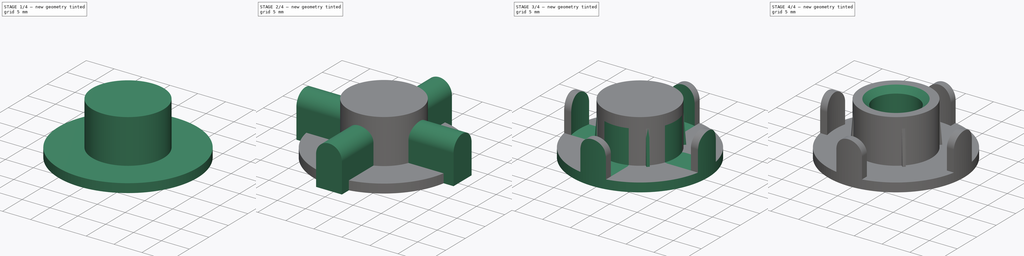
[diagram: build sequence overview — one tinted view per stage of 4, left to right]
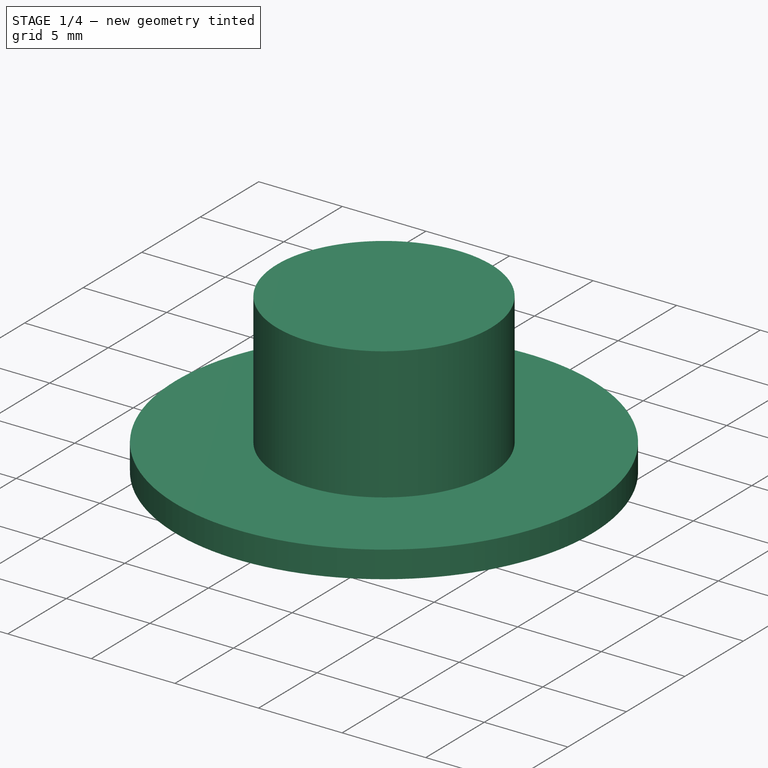
[diagram: stage 1 of 4 — iso view after this stage's code; geometry added in this stage tinted green]
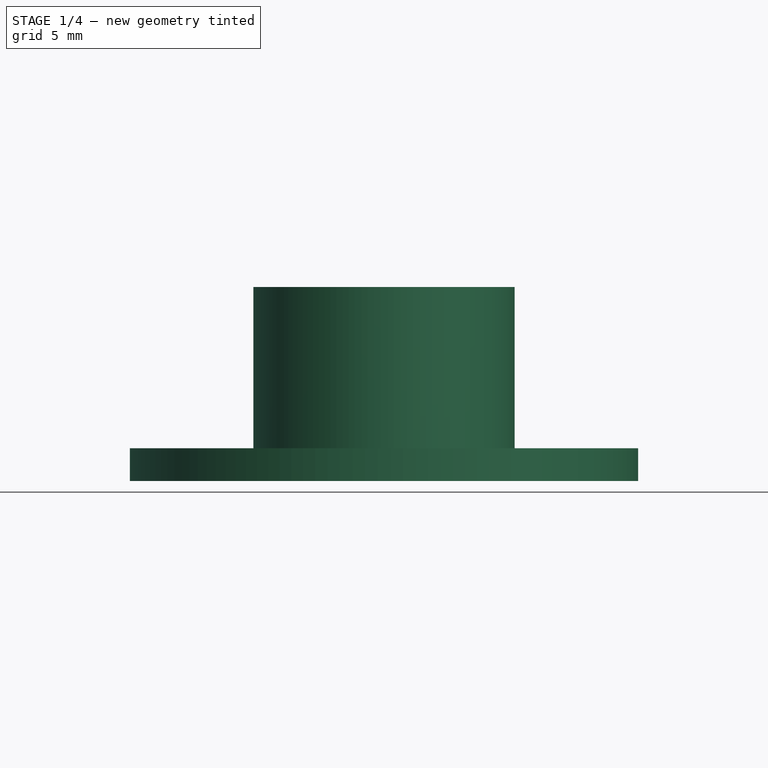
[diagram: stage 1 of 4 — front view after this stage's code; geometry added in this stage tinted green]
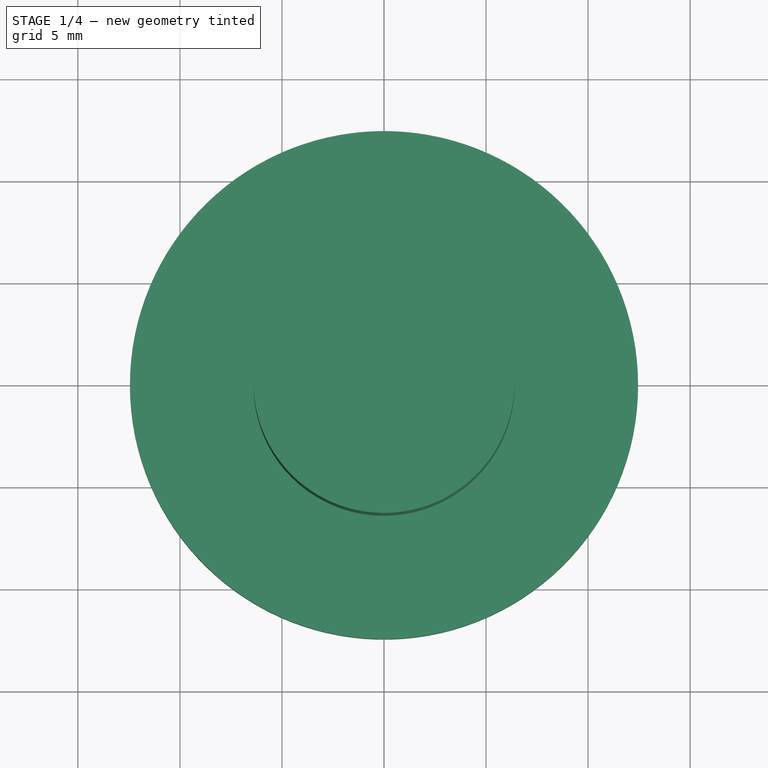
[diagram: stage 1 of 4 — top view after this stage's code; geometry added in this stage tinted green]
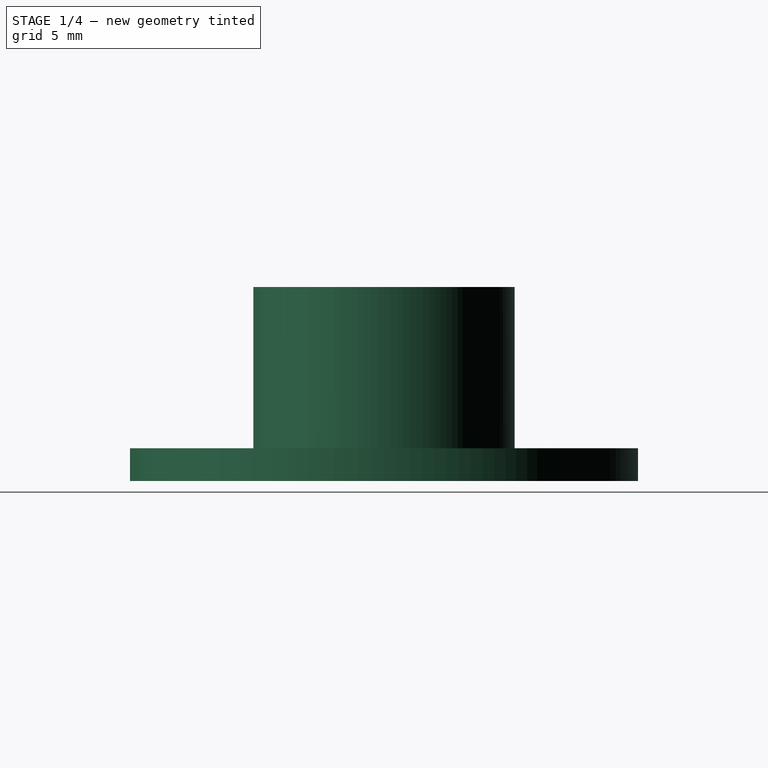
[diagram: stage 1 of 4 — right view after this stage's code; geometry added in this stage tinted green]
FCSTD DOCUMENT  (FreeCAD 0.19R24291 (Git))
Label: Wheel Mount
License: All rights reserved
LicenseURL: http://en.wikipedia.org/wiki/All_rights_reserved
objects: Sketcher::SketchObject×7, PartDesign::Pad×3, PartDesign::Pocket×2, PartDesign::PolarPattern×1, PartDesign::Revolution×1, PartDesign::Groove×1, PartDesign::Chamfer×1, PartDesign::Body×1
note: 25 computed .brp shape members not serialized (recipe doc carries the construction recipe); baked Part::Feature solids carry a one-line shape summary decoded from their .brp

FEATURE [Sketcher::SketchObject] Sketch
  FullyConstrained = true
  MapMode = 5
  Support = -> [XY_Plane]
  sketch-geometry (1):
    g0: Circle CenterX=0 CenterY=0 CenterZ=0 NormalX=0 NormalY=0 NormalZ=1 AngleXU=0 Radius=12.45
  constraints (2):
    c: Coincident(g0,g-1)
    c: Radius(g0) = 12.45  'BaseRadius'
FEATURE [PartDesign::Pad] Pad
  Direction = (1,1,1)
  Length = 1.6
  Length2 = 100
  Profile = -> Sketch
  Type = 0
FEATURE [Sketcher::SketchObject] Sketch001
  FullyConstrained = true
  MapMode = 5
  Placement = pos=(0,0,1.6) rot=(0,0,1;0rad)
  Support = -> [Pad]
  sketch-geometry (1):
    g0: Circle CenterX=0 CenterY=0 CenterZ=0 NormalX=0 NormalY=0 NormalZ=1 AngleXU=0 Radius=6.4
  constraints (2):
    c: Coincident(g0,g-1)
    c: Radius(g0) = 6.4
FEATURE [PartDesign::Pad] Pad001
  BaseFeature = -> Pad
  Direction = (1,1,1)
  Length = 7.9
  Length2 = 100
  Profile = -> Sketch001
  Type = 0
  expr: Length = 9.5mm - Pad.Length
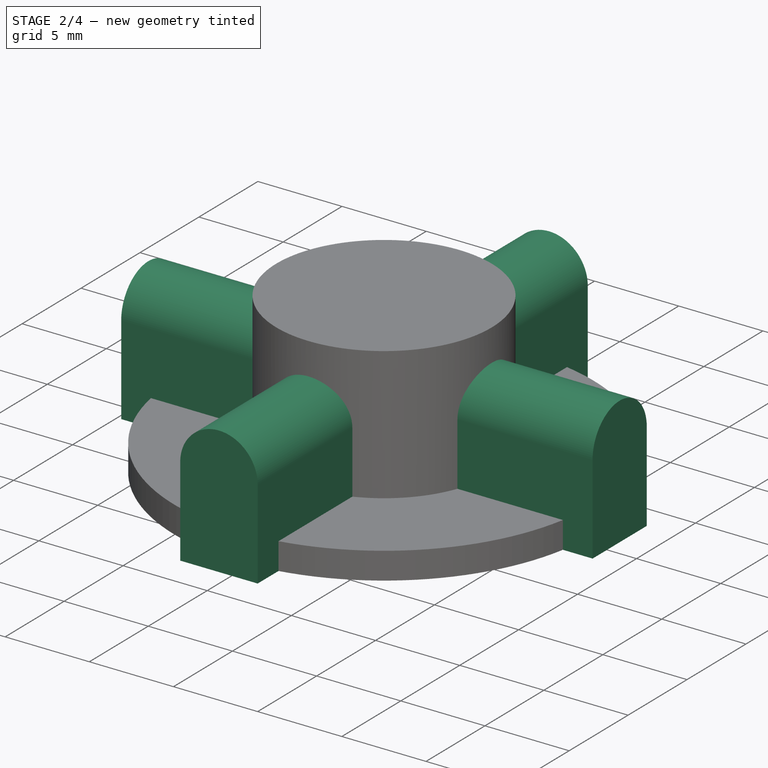
[diagram: stage 2 of 4 — iso view after this stage's code; geometry added in this stage tinted green]
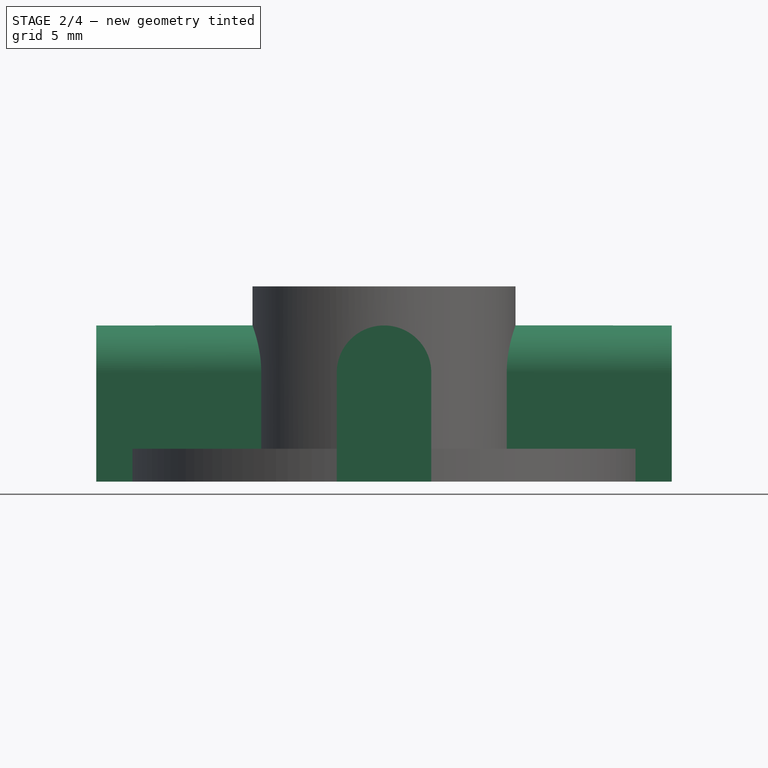
[diagram: stage 2 of 4 — front view after this stage's code; geometry added in this stage tinted green]
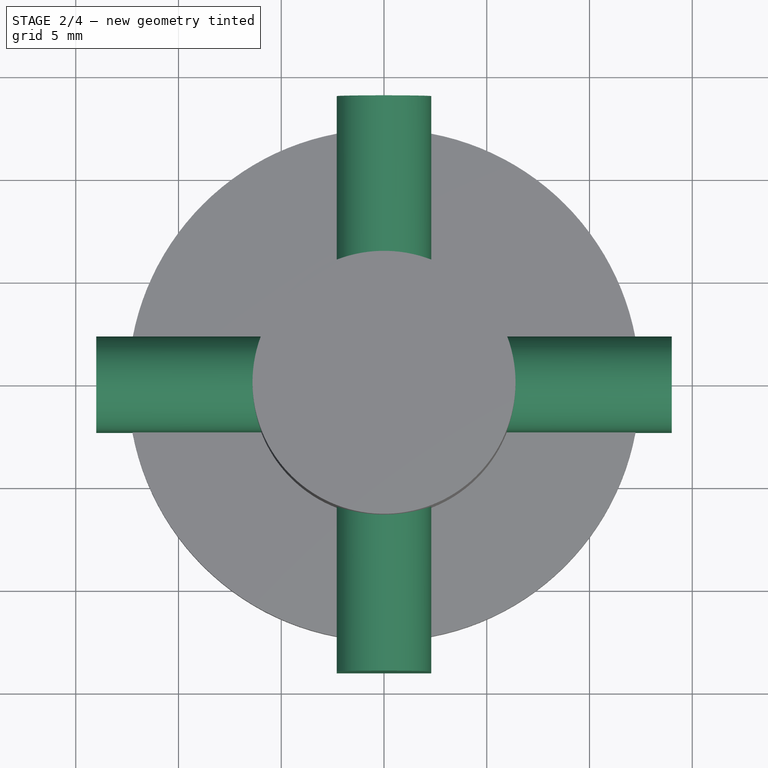
[diagram: stage 2 of 4 — top view after this stage's code; geometry added in this stage tinted green]
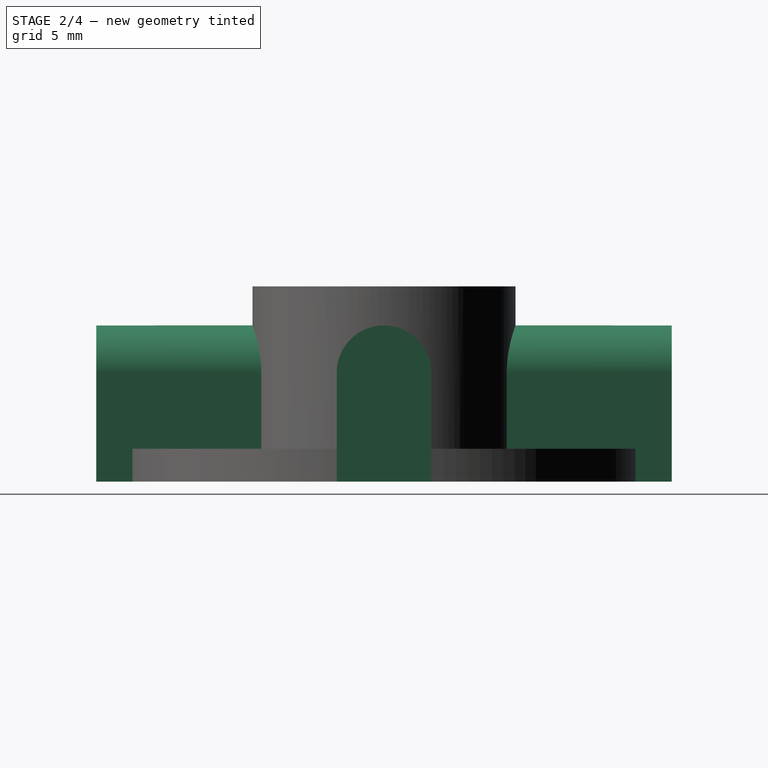
[diagram: stage 2 of 4 — right view after this stage's code; geometry added in this stage tinted green]
FEATURE [Sketcher::SketchObject] Sketch002
  FullyConstrained = true
  MapMode = 5
  Placement = pos=(0,0,0) rot=(1,0,0;1.5708rad)
  Support = -> [XZ_Plane]
  sketch-geometry (5):
    g0: LineSegment StartX=-2.3 StartY=0 StartZ=0 EndX=-2.3 EndY=5.3 EndZ=0
    g1: LineSegment StartX=2.3 StartY=0 StartZ=0 EndX=2.3 EndY=5.3 EndZ=0
    g2: ArcOfCircle CenterX=-2e-16 CenterY=5.3 CenterZ=0 NormalX=0 NormalY=0 NormalZ=1 AngleXU=0 Radius=2.3 StartAngle=-6.137e-13 EndAngle=3.14159
    g3: LineSegment StartX=-2.3 StartY=0 StartZ=0 EndX=2.3 EndY=0 EndZ=0
    g4: GeomPoint X=0 Y=7.6 Z=0
  constraints (12):
    c: PointOnObject(g1,g-1)
    c: Vertical(g0)
    c: Vertical(g1)
    c: Symmetric(g0,g1,g-2)
    c: Coincident(g3,g0)
    c: Coincident(g3,g1)
    c: DistanceX(g3,g3) = 4.6
    c: Tangent(g2,g0) = 1.5708
    c: Tangent(g2,g1) = -1.5708
    c: PointOnObject(g4,g2)
    c: PointOnObject(g4,g-2)
    c: DistanceY(g-1,g4) = 7.6
FEATURE [PartDesign::Pad] Pad002
  BaseFeature = -> Pad001
  Direction = (1,1,1)
  Length = 14
  Length2 = 100
  Profile = -> Sketch002
  Type = 0
FEATURE [PartDesign::PolarPattern] PolarPattern
  Angle = 360
  Axis = -> Sketch002 [V_Axis]
  BaseFeature = -> Pad002
  Occurrences = 4
  Originals = -> [Pad002]
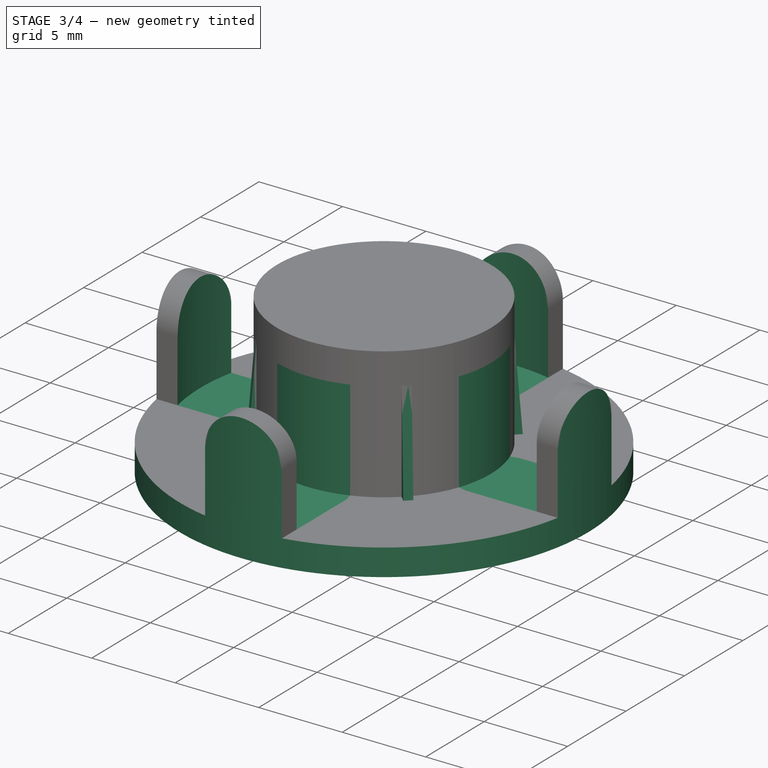
[diagram: stage 3 of 4 — iso view after this stage's code; geometry added in this stage tinted green]
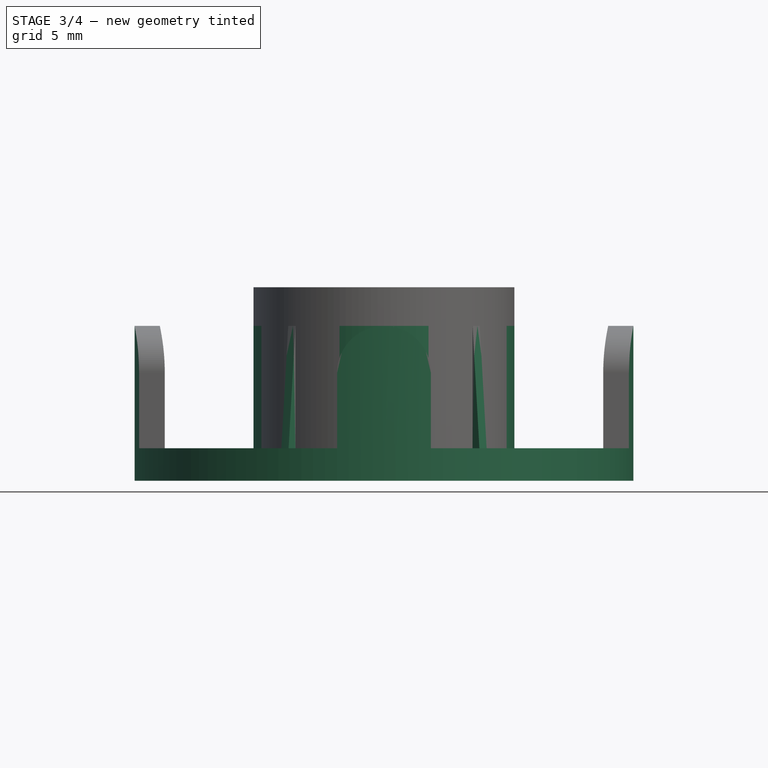
[diagram: stage 3 of 4 — front view after this stage's code; geometry added in this stage tinted green]
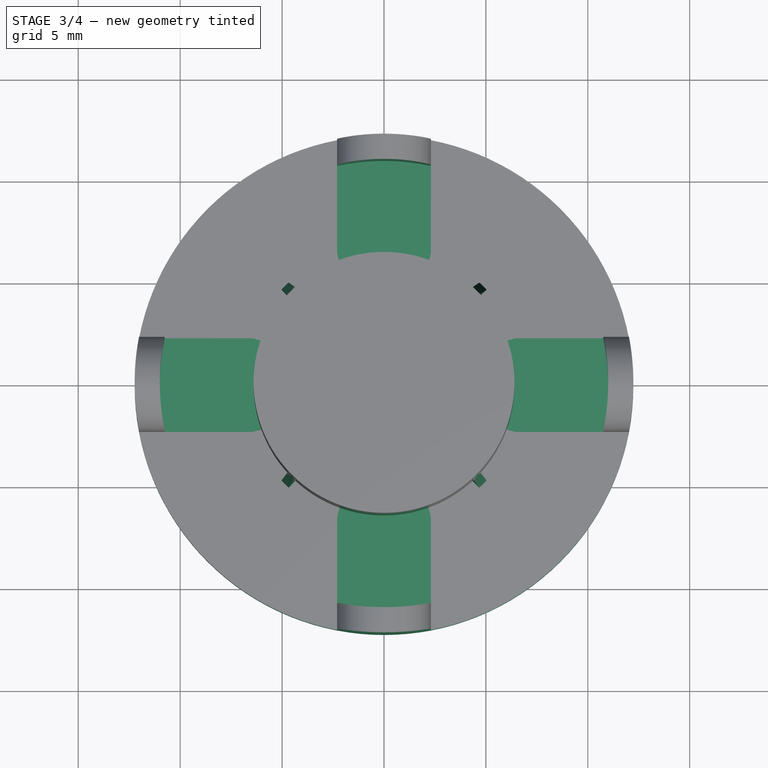
[diagram: stage 3 of 4 — top view after this stage's code; geometry added in this stage tinted green]
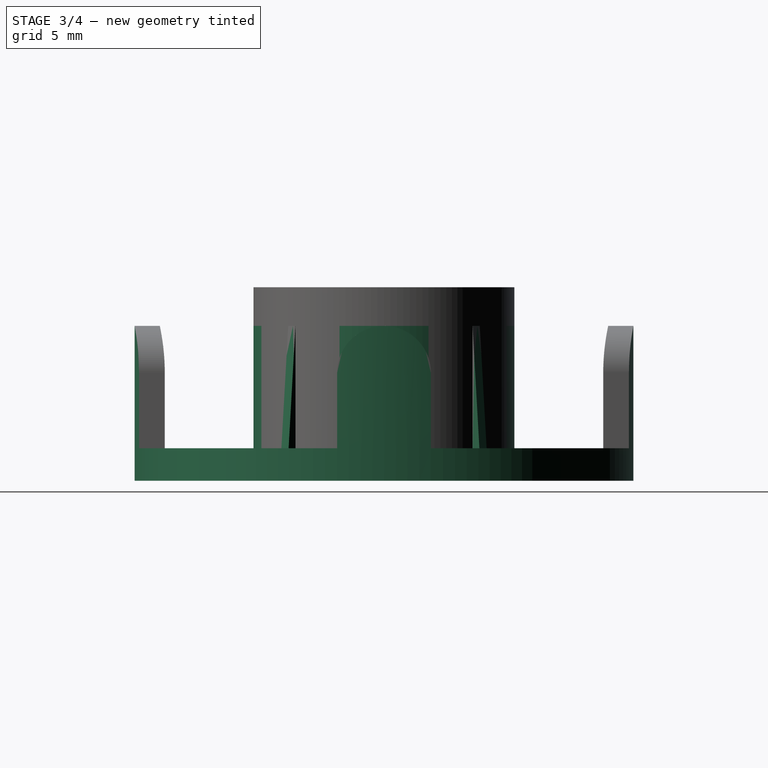
[diagram: stage 3 of 4 — right view after this stage's code; geometry added in this stage tinted green]
FEATURE [Sketcher::SketchObject] Sketch004
  FullyConstrained = false
  MapMode = 5
  Placement = pos=(0,0,0) rot=(1,0,0;1.5708rad)
  Support = -> [XZ_Plane]
  sketch-geometry (4):
    g0: LineSegment StartX=-12.2357 StartY=0 StartZ=0 EndX=-16.2357 EndY=0 EndZ=0
    g1: LineSegment StartX=-16.2357 StartY=0 StartZ=0 EndX=-16.2357 EndY=10 EndZ=0
    g2: LineSegment StartX=-16.2357 StartY=10 StartZ=0 EndX=-12.2357 EndY=10 EndZ=0
    g3: LineSegment StartX=-12.2357 StartY=10 StartZ=0 EndX=-12.2357 EndY=0 EndZ=0
  constraints (10):
    c: Coincident(g0,g1)
    c: Coincident(g1,g2)
    c: Coincident(g2,g3)
    c: Coincident(g3,g0)
    c: Horizontal(g0)
    c: Horizontal(g2)
    c: Vertical(g1)
    c: Vertical(g3)
    c: DistanceY(g1,g1) = 10
    c: DistanceX(g0,g0) = 4
FEATURE [Sketcher::SketchObject] Sketch006
  ExternalGeometry = -> [PolarPattern]
  FullyConstrained = true
  MapMode = 5
  Placement = pos=(0,0,0) rot=(1,0,0;1.5708rad)
  Support = -> [XZ_Plane]
  sketch-geometry (4):
    g0: LineSegment StartX=0 StartY=0 StartZ=0 EndX=0 EndY=7.6 EndZ=0
    g1: LineSegment StartX=0 StartY=7.6 StartZ=0 EndX=6.4 EndY=7.6 EndZ=0
    g2: LineSegment StartX=6.4 StartY=7.6 StartZ=0 EndX=7 EndY=0 EndZ=0
    g3: LineSegment StartX=7 StartY=0 StartZ=0 EndX=0 EndY=0 EndZ=0
  constraints (10):
    c: Coincident(g-1,g0)
    c: PointOnObject(g0,g-2)
    c: Coincident(g0,g1)
    c: Horizontal(g1)
    c: Coincident(g1,g2)
    c: PointOnObject(g2,g-1)
    c: Coincident(g2,g3)
    c: Coincident(g3,g0)
    c: DistanceX(g3,g3) = 7
    c: Coincident(g1,g-3)
FEATURE [PartDesign::Revolution] Revolution
  Angle = 360
  Axis = (0,-2e-16,1)
  Base = (0,0,0)
  BaseFeature = -> PolarPattern
  Profile = -> Sketch006
  ReferenceAxis = -> Sketch006 [V_Axis]
  Reversed = true
FEATURE [Sketcher::SketchObject] Sketch007
  ExternalGeometry = -> [Revolution]
  FullyConstrained = true
  MapMode = 5
  Placement = pos=(0,0,1.6) rot=(0,0,1;0rad)
  Support = -> [Revolution]
  sketch-geometry (25):
    g0: Circle CenterX=0 CenterY=0 CenterZ=0 NormalX=0 NormalY=0 NormalZ=1 AngleXU=0 Radius=11
    g1: ArcOfCircle CenterX=1.4e-15 CenterY=0 CenterZ=0 NormalX=0 NormalY=0 NormalZ=1 AngleXU=0 Radius=11 StartAngle=2.37892 EndAngle=3.90426
    g2: ArcOfCircle CenterX=1.4e-15 CenterY=0 CenterZ=0 NormalX=0 NormalY=0 NormalZ=1 AngleXU=0 Radius=11 StartAngle=3.94972 EndAngle=5.47506
    g3: ArcOfCircle CenterX=1.4e-15 CenterY=0 CenterZ=0 NormalX=0 NormalY=0 NormalZ=1 AngleXU=0 Radius=11 StartAngle=5.52052 EndAngle=7.04585
    g4: ArcOfCircle CenterX=1.4e-15 CenterY=0 CenterZ=0 NormalX=0 NormalY=0 NormalZ=1 AngleXU=0 Radius=11 StartAngle=0.808127 EndAngle=2.33347
    g5: LineSegment StartX=-7.59939 StartY=7.95294 StartZ=0 EndX=-4.34525 EndY=4.69881 EndZ=0
    g6: LineSegment StartX=7.59939 StartY=7.95294 StartZ=0 EndX=4.34525 EndY=4.69881 EndZ=0
    g7: ArcOfCircle CenterX=1.4e-15 CenterY=0 CenterZ=0 NormalX=0 NormalY=0 NormalZ=1 AngleXU=0 Radius=6.4 StartAngle=0.824471 EndAngle=2.31712
    g8: LineSegment StartX=-7.95294 StartY=7.59939 StartZ=0 EndX=-4.69881 EndY=4.34525 EndZ=0
    g9: LineSegment StartX=7.95294 StartY=-7.59939 StartZ=0 EndX=4.69881 EndY=-4.34525 EndZ=0
    g10: LineSegment StartX=7.59939 StartY=-7.95294 StartZ=0 EndX=4.34525 EndY=-4.69881 EndZ=0
    g11: LineSegment StartX=-7.59939 StartY=-7.95294 StartZ=0 EndX=-4.34525 EndY=-4.69881 EndZ=0
    g12: LineSegment StartX=-7.95294 StartY=-7.59939 StartZ=0 EndX=-4.69881 EndY=-4.34525 EndZ=0
    g13: ArcOfCircle CenterX=1.4e-15 CenterY=0 CenterZ=0 NormalX=0 NormalY=0 NormalZ=1 AngleXU=0 Radius=6.4 StartAngle=5.53686 EndAngle=7.02951
    g14: ArcOfCircle CenterX=1.4e-15 CenterY=0 CenterZ=0 NormalX=0 NormalY=0 NormalZ=1 AngleXU=0 Radius=6.4 StartAngle=3.96606 EndAngle=5.45871
    g15: ArcOfCircle CenterX=1.4e-15 CenterY=0 CenterZ=0 NormalX=0 NormalY=0 NormalZ=1 AngleXU=0 Radius=6.4 StartAngle=2.39527 EndAngle=3.88792
    g16: LineSegment StartX=7.95294 StartY=7.59939 StartZ=0 EndX=4.69881 EndY=4.34525 EndZ=0
    g17: LineSegment StartX=1.4e-15 StartY=0 StartZ=0 EndX=-8.80348 EndY=-8.80348 EndZ=0
    g18: LineSegment StartX=-7.95294 StartY=-7.59939 StartZ=0 EndX=-7.59939 EndY=-7.95294 EndZ=0
    g19: LineSegment StartX=1.4e-15 StartY=0 StartZ=0 EndX=8.80348 EndY=-8.80348 EndZ=0
    g20: LineSegment StartX=7.95294 StartY=-7.59939 StartZ=0 EndX=7.59939 EndY=-7.95294 EndZ=0
    g21: LineSegment StartX=1.4e-15 StartY=0 StartZ=0 EndX=8.80348 EndY=8.80348 EndZ=0
    g22: LineSegment StartX=7.59939 StartY=7.95294 StartZ=0 EndX=7.95294 EndY=7.59939 EndZ=0
    g23: LineSegment StartX=-7.59939 StartY=7.95294 StartZ=0 EndX=-7.95294 EndY=7.59939 EndZ=0
    g24: LineSegment StartX=1.4e-15 StartY=0 StartZ=0 EndX=-8.80348 EndY=8.80348 EndZ=0
  constraints (69):
    c: Coincident(g0,g-1)
    c: Radius(g-6) = 12.45
    c: Radius(g0) = 11
    c: PointOnObject(g1,g0)
    c: Coincident(g2,g1)
    c: PointOnObject(g2,g0)
    c: Coincident(g3,g1)
    c: Coincident(g4,g1)
    c: PointOnObject(g4,g0)
    c: Coincident(g5,g4)
    c: PointOnObject(g5,g-7)
    c: Coincident(g6,g4)
    c: Coincident(g7,g1)
    c: Coincident(g7,g5)
    c: Coincident(g7,g6)
    c: Coincident(g8,g1)
    c: PointOnObject(g8,g-7)
    c: Coincident(g9,g3)
    c: PointOnObject(g9,g-7)
    c: Coincident(g10,g2)
    c: PointOnObject(g10,g-7)
    c: Coincident(g11,g2)
    c: Coincident(g12,g1)
    c: Coincident(g13,g1)
    c: Coincident(g13,g9)
    c: Coincident(g14,g1)
    c: Coincident(g14,g10)
    c: Coincident(g14,g11)
    c: Coincident(g15,g1)
    c: Coincident(g15,g8)
    c: Coincident(g15,g12)
    c: Coincident(g16,g3)
    c: Coincident(g16,g13)
    c: Coincident(g17,g1)
    c: PointOnObject(g17,g-4)
    c: Parallel(g12,g17)
    c: Parallel(g17,g11)
    c: Coincident(g18,g1)
    c: Coincident(g18,g2)
    c: Symmetric(g2,g1,g17)
    c: Distance(g18) = 0.5
    c: Coincident(g19,g1)
    c: PointOnObject(g19,g-5)
    c: Parallel(g9,g19)
    c: Parallel(g19,g10)
    c: Coincident(g20,g3)
    c: Coincident(g20,g2)
    c: Symmetric(g3,g2,g19)
    c: Equal(g20,g18)
    c: Coincident(g21,g1)
    c: PointOnObject(g21,g-3)
    c: Parallel(g6,g21)
    c: Parallel(g21,g16)
    c: Coincident(g22,g4)
    c: Coincident(g22,g3)
    c: Symmetric(g3,g4,g21)
    c: Perpendicular(g21,g19)
    c: Perpendicular(g17,g19)
    c: Coincident(g23,g4)
    c: Coincident(g23,g1)
    c: Coincident(g24,g1)
    c: PointOnObject(g24,g-6)
    c: Perpendicular(g17,g24)
    c: Symmetric(g1,g4,g24)
    c: Equal(g23,g22)
    c: Parallel(g8,g24)
    c: Parallel(g24,g5)
    c: Equal(g20,g22)
    c: Angle(g-1,g24) = 2.35619
FEATURE [PartDesign::Pocket] Pocket
  BaseFeature = -> Revolution
  Length = 10
  Length2 = 100
  Profile = -> Sketch007
  Reversed = true
  Type = 0
FEATURE [PartDesign::Groove] Groove
  Angle = 360
  Axis = (0,-2e-16,1)
  Base = (0,0,0)
  BaseFeature = -> Pocket
  Profile = -> Sketch004
  ReferenceAxis = -> Sketch004 [V_Axis]
  Reversed = true
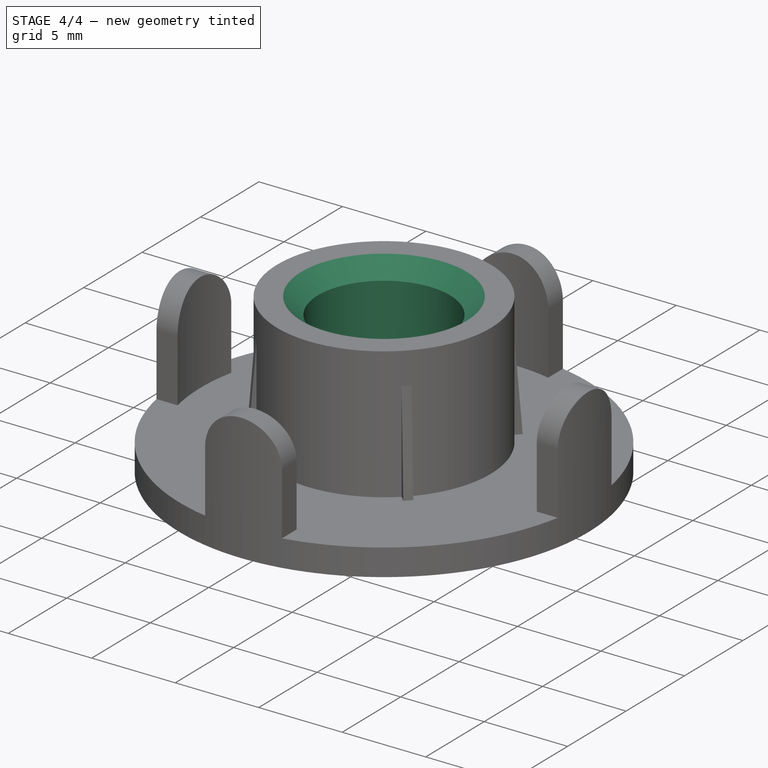
[diagram: stage 4 of 4 — iso view after this stage's code; geometry added in this stage tinted green]
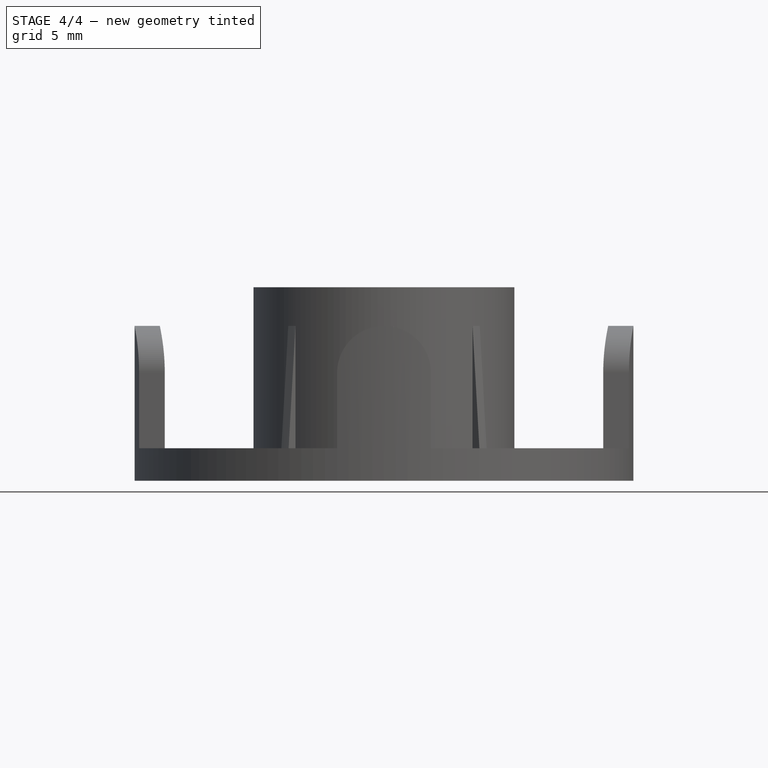
[diagram: stage 4 of 4 — front view after this stage's code; geometry added in this stage tinted green]
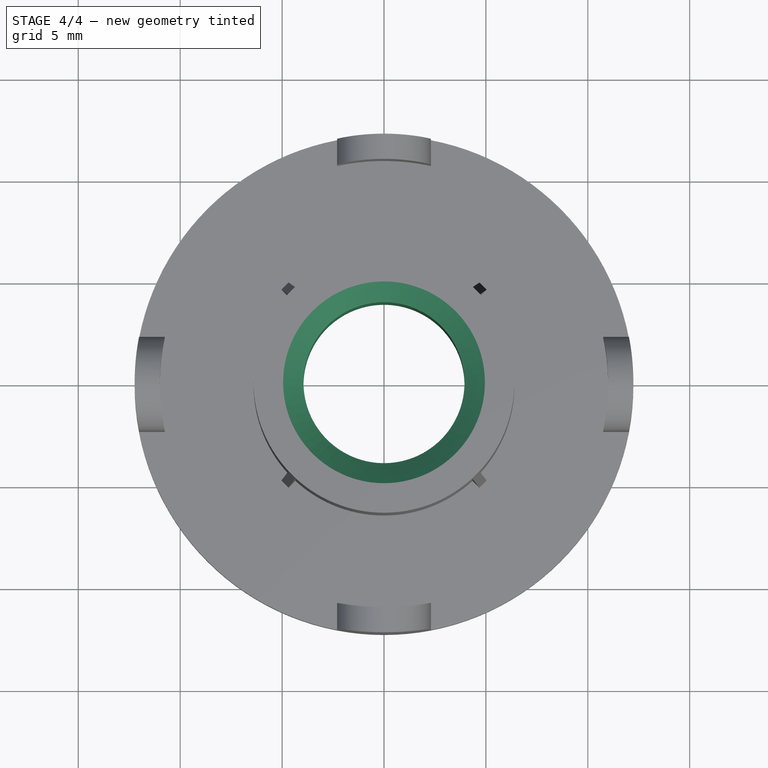
[diagram: stage 4 of 4 — top view after this stage's code; geometry added in this stage tinted green]
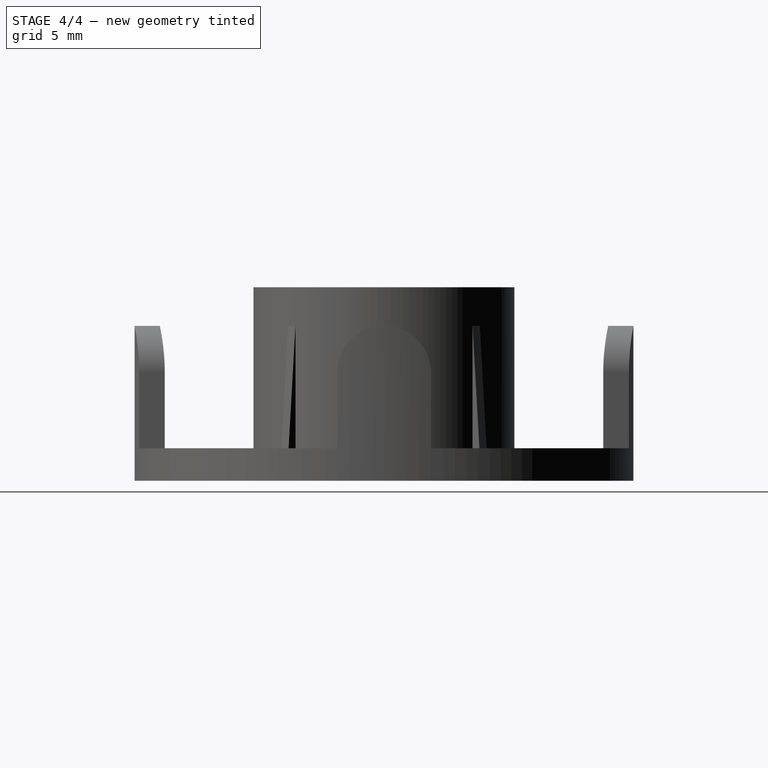
[diagram: stage 4 of 4 — right view after this stage's code; geometry added in this stage tinted green]
FEATURE [Sketcher::SketchObject] Sketch005
  FullyConstrained = true
  MapMode = 5
  Placement = pos=(0,0,9.5) rot=(0,0,1;0rad)
  Support = -> [Groove]
  sketch-geometry (1):
    g0: Circle CenterX=0 CenterY=0 CenterZ=0 NormalX=0 NormalY=0 NormalZ=1 AngleXU=0 Radius=3.95
  constraints (2):
    c: Coincident(g0,g-1)
    c: Radius(g0) = 3.95
FEATURE [PartDesign::Pocket] Pocket001
  BaseFeature = -> Groove
  Length = 5
  Length2 = 100
  Profile = -> Sketch005
  Type = 1
FEATURE [PartDesign::Chamfer] Chamfer
  Angle = 45
  Base = -> Pocket001 [Edge16,Edge18]
  BaseFeature = -> Pocket001
  ChamferType = 0
  FlipDirection = false
  Size = 1
  Size2 = 1
  SupportTransform = false
FEATURE [PartDesign::Body] Body
  Group = -> [Sketch,Pad,Sketch001,Pad001,Sketch002,Pad002,PolarPattern,Sketch004,Sketch005,Sketch006,Revolution,Sketch007,Pocket,Groove,Pocket001,Chamfer]
  Origin = -> Origin
  Tip = -> Chamfer
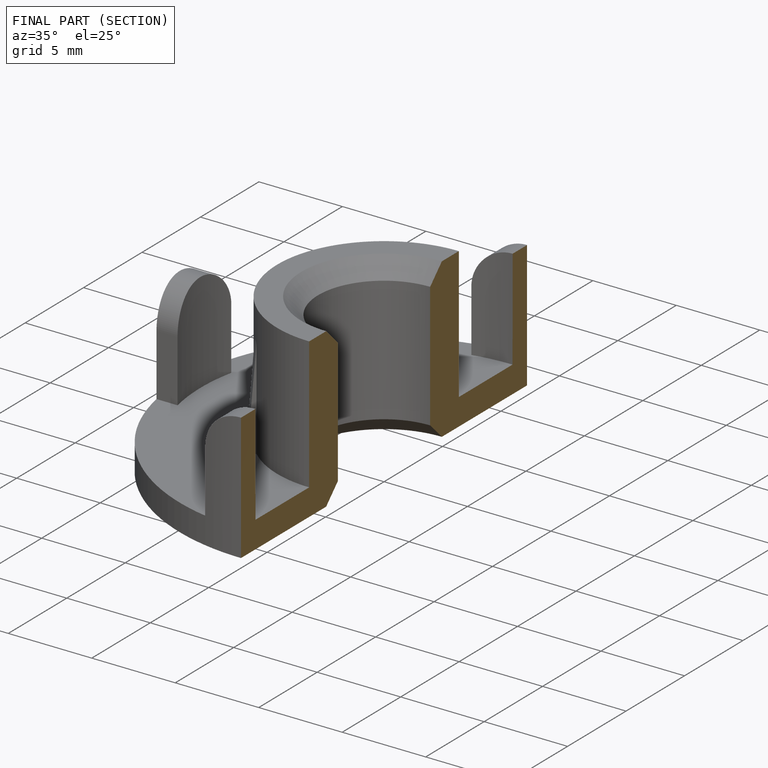
[diagram: finished part — half-section view (interior)]
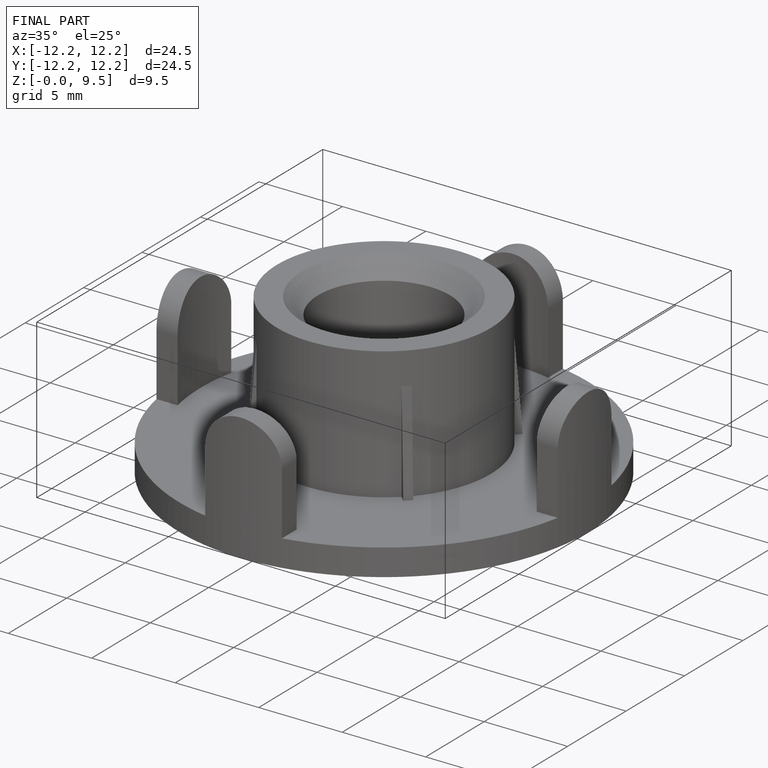
[diagram: finished part — iso view with bounding-box wireframe]
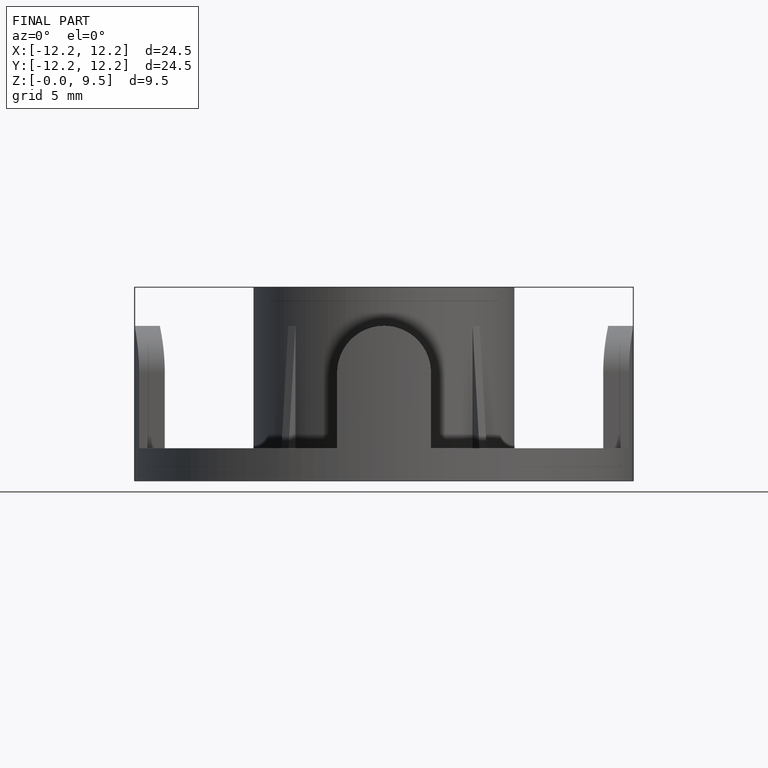
[diagram: finished part — front view with bounding-box wireframe]
